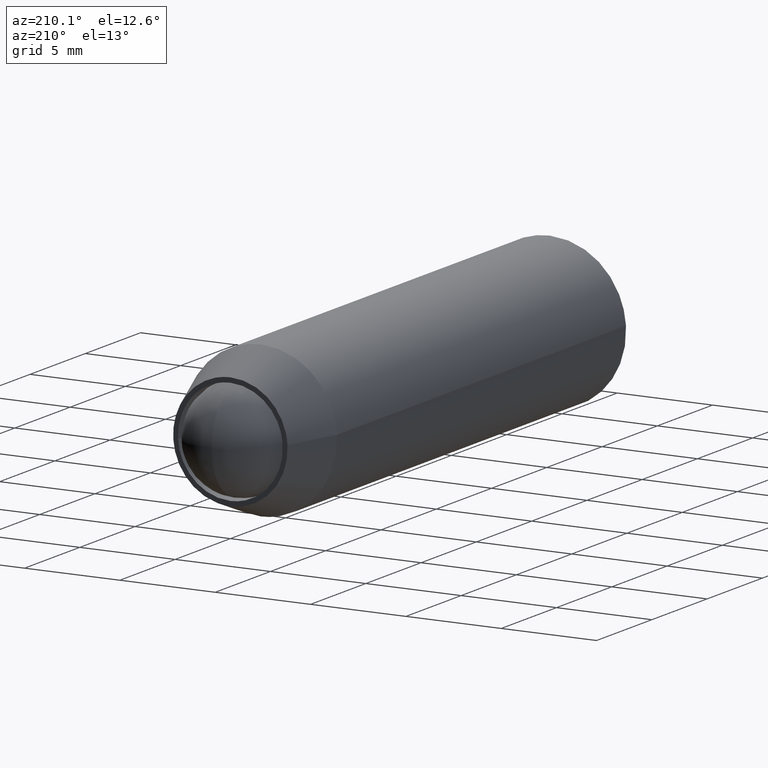
[diagram: clean part render]
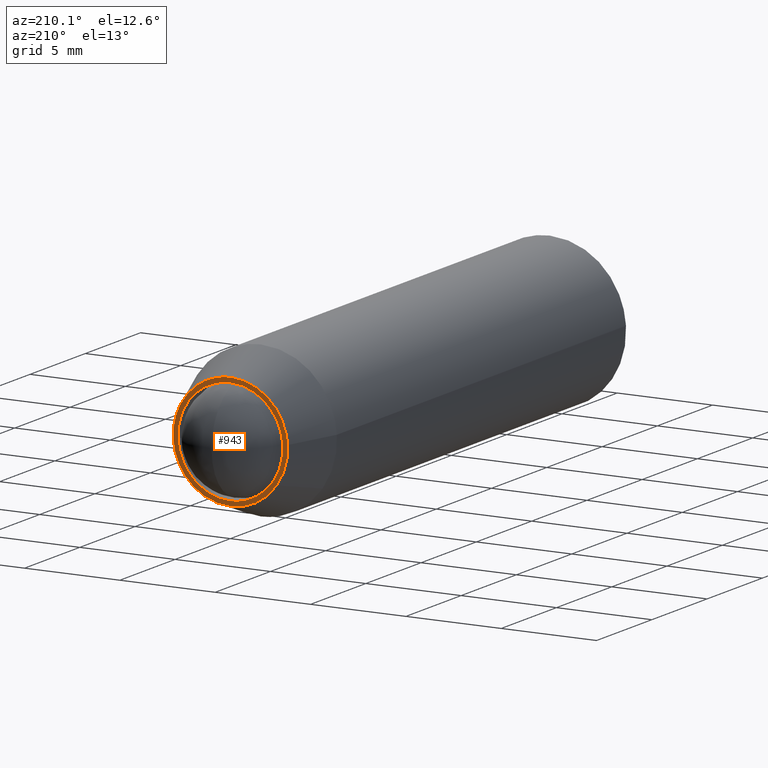
[diagram: same view with one face highlighted and labeled with its STEP entity id]
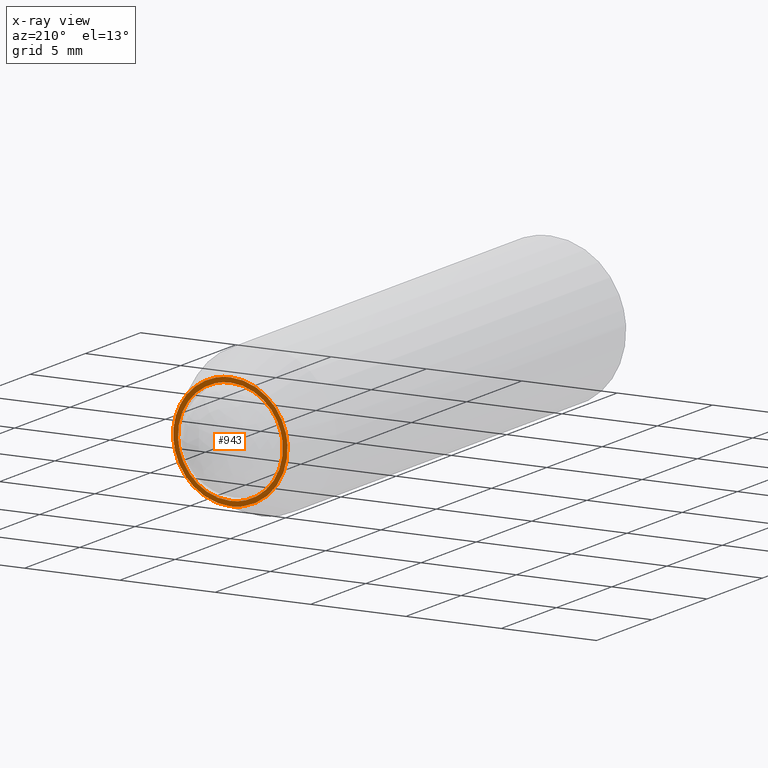
[diagram: x-ray of the same camera — body ghosted, the highlighted face saturated]
A machine part, auxiliary view. The second image highlights one B-rep face of the part: STEP entity #943.
The next image is the same camera in x-ray: the body ghosted, the highlighted face saturated — about 0% of this face is hidden behind the body in this view.
In plain terms, the highlighted face is a freeform B-spline surface patch.
Its self-contained STEP definition (entity closure, byte-faithful):
#100=CARTESIAN_POINT('',(2.744870889835981,-1.110223E-016,-0.167880308913567));
#101=VERTEX_POINT('',#100);
#107=CARTESIAN_POINT('',(0.0,0.0,-2.750000000000000));
#108=VERTEX_POINT('',#107);
#109=CARTESIAN_POINT('',(0.0,0.0,-2.750000000000000));
#110=CARTESIAN_POINT('',(2.586944681724881,0.0,-2.750000000000000));
#111=CARTESIAN_POINT('',(2.744870889835980,-1.110223E-016,-0.167880308913567));
#119=(BOUNDED_CURVE()B_SPLINE_CURVE(2,(#109,#110,#111),.UNSPECIFIED.,.F.,.U.)B_SPLINE_CURVE_WITH_KNOTS((3,3),(0.500000000000000,0.739333161815263),.UNSPECIFIED.)CURVE()GEOMETRIC_REPRESENTATION_ITEM()RATIONAL_B_SPLINE_CURVE((1.0,0.719603759468507,0.976072469397135))REPRESENTATION_ITEM(''));
#120=EDGE_CURVE('',#108,#101,#119,.T.);
#122=CARTESIAN_POINT('',(-2.730776197498029,1.774643E-016,0.324594145323364));
#123=VERTEX_POINT('',#122);
#124=CARTESIAN_POINT('',(-2.730776197498029,1.774643E-016,0.324594145323364));
#125=CARTESIAN_POINT('',(-2.750000000000000,0.0,0.162866329060214));
#126=CARTESIAN_POINT('',(-2.750000000000000,0.0,0.0));
#127=CARTESIAN_POINT('',(-2.750000000000000,0.0,-2.750000000000000));
#128=CARTESIAN_POINT('',(0.0,0.0,-2.750000000000000));
#136=(BOUNDED_CURVE()B_SPLINE_CURVE(2,(#124,#125,#126,#127,#128),.UNSPECIFIED.,.F.,.U.)B_SPLINE_CURVE_WITH_KNOTS((3,2,3),(0.229562473513506,0.250000000000000,0.500000000000000),.UNSPECIFIED.)CURVE()GEOMETRIC_REPRESENTATION_ITEM()RATIONAL_B_SPLINE_CURVE((0.956026754183694,0.976055948331142,1.0,0.707106781186548,1.0))REPRESENTATION_ITEM(''));
#137=EDGE_CURVE('',#123,#108,#136,.T.);
#181=CARTESIAN_POINT('',(0.0,0.0,2.750000000000000));
#182=VERTEX_POINT('',#181);
#183=CARTESIAN_POINT('',(0.0,0.0,2.750000000000000));
#184=CARTESIAN_POINT('',(-2.442479946335134,0.0,2.750000000000000));
#185=CARTESIAN_POINT('',(-2.730776197498029,1.774643E-016,0.324594145323364));
#193=(BOUNDED_CURVE()B_SPLINE_CURVE(2,(#183,#184,#185),.UNSPECIFIED.,.F.,.U.)B_SPLINE_CURVE_WITH_KNOTS((3,3),(0.0,0.229562473513506),.UNSPECIFIED.)CURVE()GEOMETRIC_REPRESENTATION_ITEM()RATIONAL_B_SPLINE_CURVE((1.0,0.731050832855406,0.956026754183694))REPRESENTATION_ITEM(''));
#194=EDGE_CURVE('',#182,#123,#193,.T.);
#196=CARTESIAN_POINT('',(2.744870889835980,-1.110223E-016,-0.167880308913567));
#197=CARTESIAN_POINT('',(2.750000000000000,0.0,-0.084018507216690));
#198=CARTESIAN_POINT('',(2.750000000000000,0.0,0.0));
#199=CARTESIAN_POINT('',(2.750000000000000,0.0,2.750000000000000));
#200=CARTESIAN_POINT('',(0.0,0.0,2.750000000000000));
#208=(BOUNDED_CURVE()B_SPLINE_CURVE(2,(#196,#197,#198,#199,#200),.UNSPECIFIED.,.F.,.U.)B_SPLINE_CURVE_WITH_KNOTS((3,2,3),(0.739333161815263,0.750000000000000,1.0),.UNSPECIFIED.)CURVE()GEOMETRIC_REPRESENTATION_ITEM()RATIONAL_B_SPLINE_CURVE((0.976072469397135,0.987503021718040,1.0,0.707106781186548,1.0))REPRESENTATION_ITEM(''));
#209=EDGE_CURVE('',#101,#182,#208,.T.);
#256=CARTESIAN_POINT('',(-2.432920718910286,-3.551586E-013,-1.755248351515488));
#257=VERTEX_POINT('',#256);
#258=CARTESIAN_POINT('',(0.0,0.0,-3.000000000000001));
#259=VERTEX_POINT('',#258);
#260=CARTESIAN_POINT('',(-2.432920718910286,-3.551586E-013,-1.755248351515487));
#261=CARTESIAN_POINT('',(-1.534885586868278,0.0,-3.000000000000001));
#262=CARTESIAN_POINT('',(0.0,0.0,-3.000000000000001));
#270=(BOUNDED_CURVE()B_SPLINE_CURVE(2,(#260,#261,#262),.UNSPECIFIED.,.F.,.U.)B_SPLINE_CURVE_WITH_KNOTS((3,3),(0.850743050382349,1.0),.UNSPECIFIED.)CURVE()GEOMETRIC_REPRESENTATION_ITEM()RATIONAL_B_SPLINE_CURVE((0.859068214727186,0.825134606384836,1.0))REPRESENTATION_ITEM(''));
#271=EDGE_CURVE('',#257,#259,#270,.T.);
#273=CARTESIAN_POINT('',(0.0,0.0,2.999999999999999));
#274=VERTEX_POINT('',#273);
#275=CARTESIAN_POINT('',(0.0,0.0,-3.000000000000001));
#276=CARTESIAN_POINT('',(3.0,0.0,-3.0));
#277=CARTESIAN_POINT('',(3.0,0.0,-6.735335E-016));
#278=CARTESIAN_POINT('',(3.0,0.0,2.999999999999999));
#279=CARTESIAN_POINT('',(0.0,0.0,2.999999999999999));
#287=(BOUNDED_CURVE()B_SPLINE_CURVE(2,(#275,#276,#277,#278,#279),.UNSPECIFIED.,.F.,.U.)B_SPLINE_CURVE_WITH_KNOTS((3,2,3),(0.0,0.250000000000000,0.500000000000000),.UNSPECIFIED.)CURVE()GEOMETRIC_REPRESENTATION_ITEM()RATIONAL_B_SPLINE_CURVE((1.0,0.707106781186548,1.0,0.707106781186548,1.0))REPRESENTATION_ITEM(''));
#288=EDGE_CURVE('',#259,#274,#287,.T.);
#290=CARTESIAN_POINT('',(-2.994404395265815,-7.142620E-012,0.183145618643663));
#291=VERTEX_POINT('',#290);
#292=CARTESIAN_POINT('',(0.0,0.0,2.999999999999999));
#293=CARTESIAN_POINT('',(-2.822118200643569,0.0,2.999999999999999));
#294=CARTESIAN_POINT('',(-2.994404395265815,-7.142620E-012,0.183145618643663));
#302=(BOUNDED_CURVE()B_SPLINE_CURVE(2,(#292,#293,#294),.UNSPECIFIED.,.F.,.U.)B_SPLINE_CURVE_WITH_KNOTS((3,3),(0.500000000000000,0.739332962237482),.UNSPECIFIED.)CURVE()GEOMETRIC_REPRESENTATION_ITEM()RATIONAL_B_SPLINE_CURVE((1.0,0.719603993288422,0.976072041663586))REPRESENTATION_ITEM(''));
#303=EDGE_CURVE('',#274,#291,#302,.T.);
#396=CARTESIAN_POINT('',(-2.994404395265815,-7.142620E-012,0.183145618643663));
#397=CARTESIAN_POINT('',(-3.0,0.0,0.091658289934809));
#398=CARTESIAN_POINT('',(-3.0,0.0,-6.735335E-016));
#399=CARTESIAN_POINT('',(-3.0,0.0,-0.969229136038800));
#400=CARTESIAN_POINT('',(-2.432920718910286,-3.551586E-013,-1.755248351515487));
#408=(BOUNDED_CURVE()B_SPLINE_CURVE(2,(#396,#397,#398,#399,#400),.UNSPECIFIED.,.F.,.U.)B_SPLINE_CURVE_WITH_KNOTS((3,2,3),(0.739332962237481,0.750000000000000,0.850743050382349),.UNSPECIFIED.)CURVE()GEOMETRIC_REPRESENTATION_ITEM()RATIONAL_B_SPLINE_CURVE((0.976072041663585,0.987502787898125,1.0,0.881972174801712,0.859068214727186))REPRESENTATION_ITEM(''));
#409=EDGE_CURVE('',#291,#257,#408,.T.);
#926=CARTESIAN_POINT('',(-3.299611165884690,0.0,-3.299699988370836));
#927=CARTESIAN_POINT('',(-3.299611165884690,0.0,3.299700149303375));
#928=CARTESIAN_POINT('',(3.299695923689560,0.0,-3.299699988370836));
#929=CARTESIAN_POINT('',(3.299695923689560,0.0,3.299700149303375));
#930=B_SPLINE_SURFACE_WITH_KNOTS('',1,1,((#926,#928),(#927,#929)),.UNSPECIFIED.,.F.,.F.,.U.,(2,2),(2,2),(0.0,6.599400137674211),(0.0,6.599307089574250),.UNSPECIFIED.);
#931=ORIENTED_EDGE('',*,*,#271,.F.);
#932=ORIENTED_EDGE('',*,*,#409,.F.);
#933=ORIENTED_EDGE('',*,*,#303,.F.);
#934=ORIENTED_EDGE('',*,*,#288,.F.);
#935=EDGE_LOOP('',(#931,#932,#933,#934));
#936=FACE_OUTER_BOUND('',#935,.T.);
#937=ORIENTED_EDGE('',*,*,#120,.T.);
#938=ORIENTED_EDGE('',*,*,#209,.T.);
#939=ORIENTED_EDGE('',*,*,#194,.T.);
#940=ORIENTED_EDGE('',*,*,#137,.T.);
#941=EDGE_LOOP('',(#937,#938,#939,#940));
#942=FACE_BOUND('',#941,.T.);
#943=ADVANCED_FACE('',(#936,#942),#930,.T.);